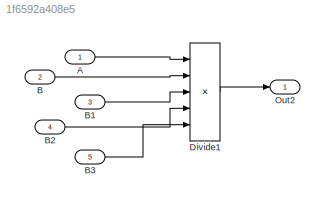
MODEL slx_1f6592a408e5
KIND model
CONFIG AbsTol = auto
CONFIG EnableMultiTasking = off
CONFIG FixedStep = 0.200000
CONFIG MaxStep = auto
CONFIG MinStep = auto
CONFIG RelTol = 1e-3
CONFIG SampleTimeConstraint = Unconstrained
CONFIG Solver = FixedStepDiscrete
CONFIG SolverName = FixedStepDiscrete
CONFIG StartTime = 0.0
CONFIG StopTime = 19.8
WORKSPACE source: MAT-file member
WORKSPACE already_pp = 0
BLOCK [Inport] A
  IconDisplay = Port number
  OutDataTypeStr = double
  PortDimensions = [2 2]
BLOCK [Inport] B
  IconDisplay = Port number
  OutDataTypeStr = double
  Port = 2
  PortDimensions = [2 3]
BLOCK [Inport] B1
  IconDisplay = Port number
  OutDataTypeStr = double
  Port = 3
  PortDimensions = [3 3]
BLOCK [Inport] B2
  IconDisplay = Port number
  OutDataTypeStr = double
  Port = 4
  PortDimensions = [3 4]
BLOCK [Inport] B3
  IconDisplay = Port number
  OutDataTypeStr = double
  Port = 5
  PortDimensions = [4 4]
BLOCK [Product] Divide1
  InputSameDT = off
  Inputs = /*/*/
  Multiplication = Matrix(*)
  OutDataTypeStr = Inherit: Inherit via internal rule
  Ports = [5, 1]
  RndMeth = Floor
  SaturateOnIntegerOverflow = off
BLOCK [Outport] Out2
  IconDisplay = Port number
LINE A:1 -> Divide1:1
LINE B1:1 -> Divide1:3
LINE B2:1 -> Divide1:4
LINE B3:1 -> Divide1:5
LINE B:1 -> Divide1:2
LINE Divide1:1 -> Out2:1
